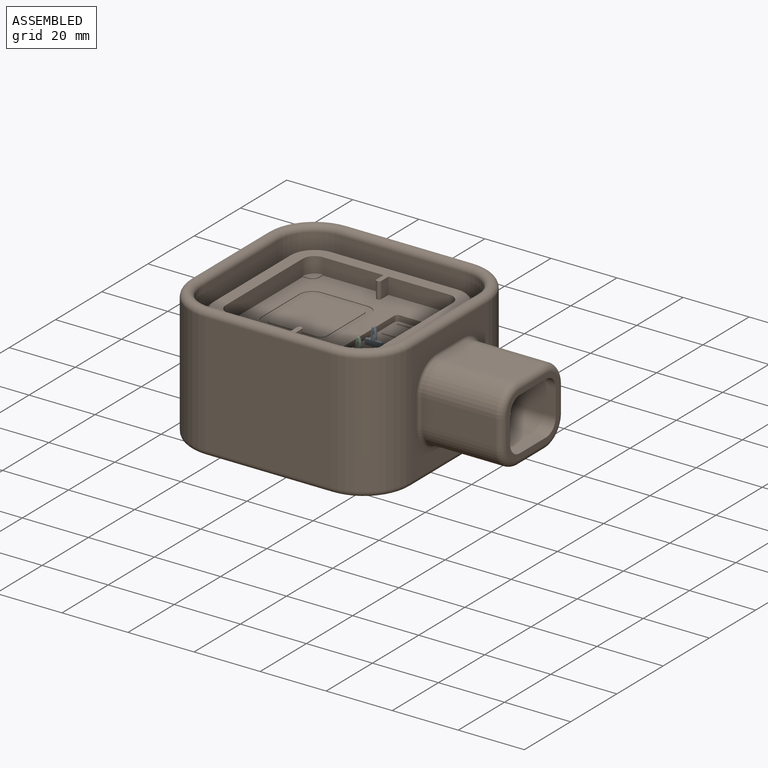
[diagram: assembled view]
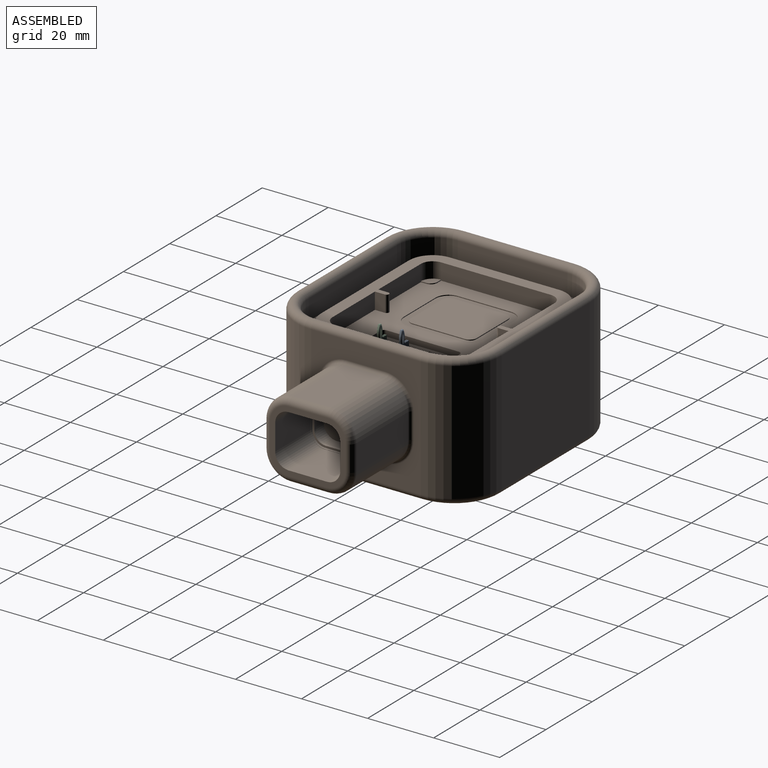
[diagram: assembled view, second angle]
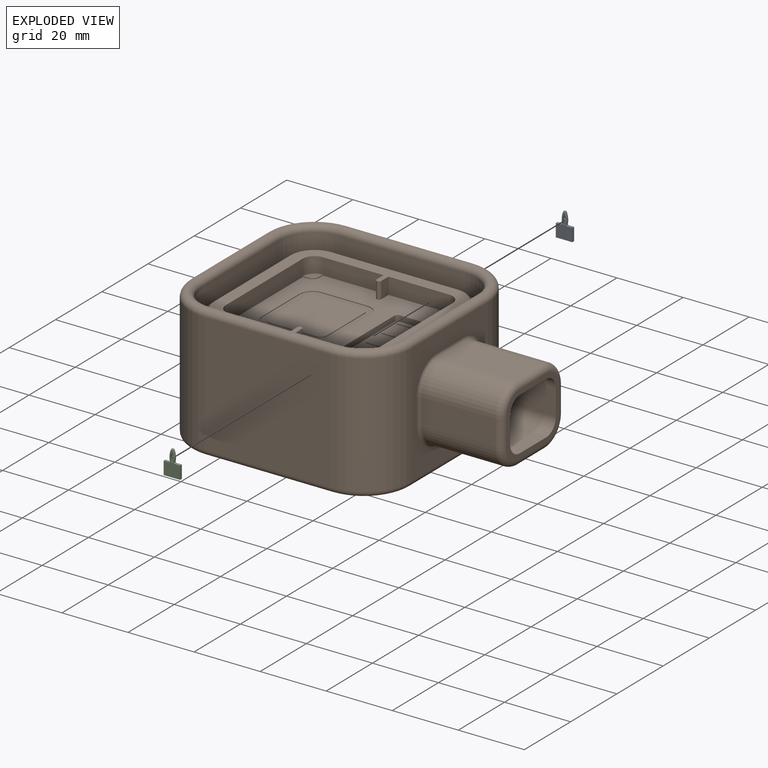
[diagram: exploded view]
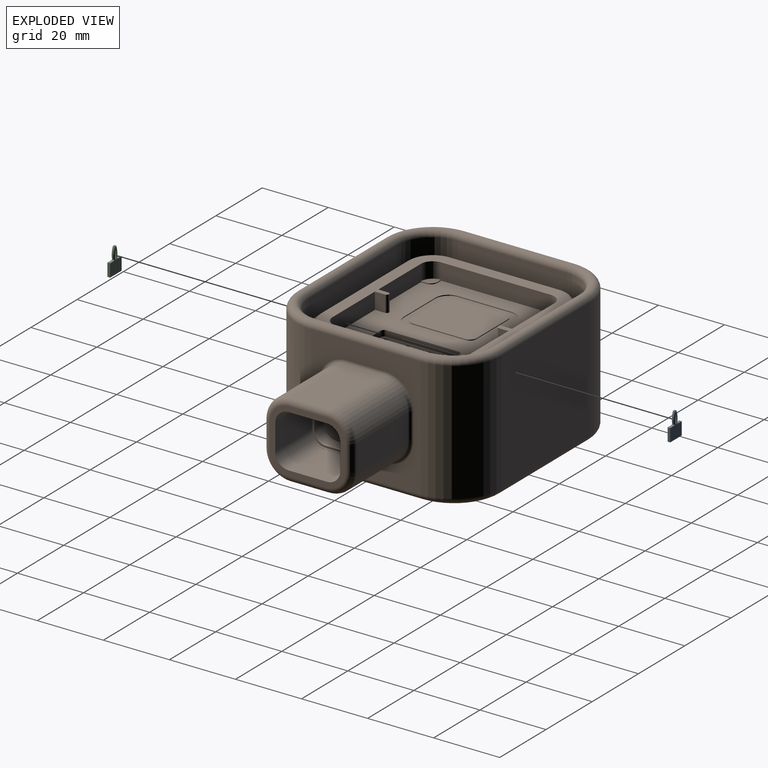
[diagram: exploded view, second angle]
ASSEMBLY  parts=3 mates=4
PART A: 50 faces, bbox 5x7.9x1.8 mm
  f0: plane 3.92x0.8mm, normal (-1,0,0), area 3.1mm2, adj f1,f2,f11,f48
  f1: plane 7.44x5mm, normal (0,0,1), area 21.6mm2, adj f0,f5,f11,f16,f17,f18,f19,f20
  f2: plane 7.44x5mm, normal (0,0,-1), area 21.6mm2, adj f0,f5,f11,f16,f17,f18,f19,f30
  f3: plane 0.64x0.51mm, normal (0,-1,0), area 0.3mm2, adj f4,f12,f20,f25,f30,f35,f40,f41
  f4: cylinder r=5.53mm len=2.32mm, axis (0,0,-1), area 0.7mm2, adj f3,f9,f25,f30
  f5: plane 1.61x0.8mm, normal (0,-1,0), area 1.2mm2, adj f1,f2,f42,f43,f44,f49
  f6: plane 0.3x0.11mm, normal (1,0,0), area 0mm2, adj f7,f29,f34,f43
  f7: cylinder r=1mm len=0.3mm, axis (0,0,-1), area 0.1mm2, adj f6,f8,f28,f33
  f8: cylinder r=2mm len=0.56mm, axis (0,0,-1), area 0.2mm2, adj f7,f9,f27,f32
  f9: plane 0.3x0.26mm, normal (1,0,0), area 0.1mm2, adj f4,f8,f26,f31
  f10: plane 0.3x0.11mm, normal (-1,0,0), area 0mm2, adj f15,f24,f39,f46
  f11: plane 1.61x0.8mm, normal (0,-1,0), area 1.2mm2, adj f0,f1,f2,f45,f46,f47
  f12: cylinder r=5.53mm len=2.32mm, axis (0,0,-1), area 0.7mm2, adj f3,f13,f20,f35
  f13: plane 0.3x0.26mm, normal (-1,0,0), area 0.1mm2, adj f12,f14,f21,f36
  f14: cylinder r=2mm len=0.56mm, axis (0,0,-1), area 0.2mm2, adj f13,f15,f22,f37
  f15: cylinder r=1mm len=0.3mm, axis (0,0,-1), area 0.1mm2, adj f10,f14,f23,f38
  f16: cylinder r=0.2mm len=0.8mm, axis (0,0,-1), area 0.4mm2, adj f1,f2,f17,f19
  f17: cylinder r=4.67mm len=2.32mm, axis (0,0,-1), area 1.9mm2, adj f1,f2,f16,f18
  f18: cylinder r=0.2mm len=0.8mm, axis (0,0,-1), area 0.4mm2, adj f1,f2,f17,f19
  f19: cylinder r=4.67mm len=2.32mm, axis (0,0,-1), area 1.9mm2, adj f1,f2,f16,f18
  f20: torus R=5.28mm, axis (0,0,1), area 0.9mm2, adj f1,f3,f12,f21,f40
  f21: cylinder r=0.25mm len=0.26mm, axis (0,1,0), area 0.1mm2, adj f1,f13,f20,f22
  f22: torus R=1.75mm, axis (0,0,1), area 0.2mm2, adj f1,f14,f21,f23
  f23: torus R=1.25mm, axis (0,0,1), area 0.1mm2, adj f1,f15,f22,f24
  f24: cylinder r=0.25mm len=0.25mm, axis (0,1,0), area 0mm2, adj f1,f10,f23,f47
  f25: torus R=5.28mm, axis (0,0,1), area 0.9mm2, adj f1,f3,f4,f26,f40
  f26: cylinder r=0.25mm len=0.26mm, axis (0,-1,0), area 0.1mm2, adj f1,f9,f25,f27
  f27: torus R=1.75mm, axis (0,0,1), area 0.2mm2, adj f1,f8,f26,f28
  f28: torus R=1.25mm, axis (0,0,1), area 0.1mm2, adj f1,f7,f27,f29
  f29: cylinder r=0.25mm len=0.25mm, axis (0,-1,0), area 0mm2, adj f1,f6,f28,f44
  f30: torus R=5.28mm, axis (0,0,1), area 0.9mm2, adj f2,f3,f4,f31,f41
  f31: cylinder r=0.25mm len=0.26mm, axis (0,1,0), area 0.1mm2, adj f2,f9,f30,f32
  f32: torus R=1.75mm, axis (0,0,1), area 0.2mm2, adj f2,f8,f31,f33
  f33: torus R=1.25mm, axis (0,0,1), area 0.1mm2, adj f2,f7,f32,f34
  f34: cylinder r=0.25mm len=0.25mm, axis (0,1,0), area 0mm2, adj f2,f6,f33,f42
  f35: torus R=5.28mm, axis (0,0,1), area 0.9mm2, adj f2,f3,f12,f36,f41
  f36: cylinder r=0.25mm len=0.26mm, axis (0,-1,0), area 0.1mm2, adj f2,f13,f35,f37
  f37: torus R=1.75mm, axis (0,0,1), area 0.2mm2, adj f2,f14,f36,f38
  f38: torus R=1.25mm, axis (0,0,1), area 0.1mm2, adj f2,f15,f37,f39
  f39: cylinder r=0.25mm len=0.25mm, axis (0,-1,0), area 0mm2, adj f2,f10,f38,f45
  f40: plane 0.61x0.26mm, normal (0,-0.5,0.87), area 0.2mm2, adj f1,f3,f20,f25
  f41: plane 0.61x0.26mm, normal (0,-0.5,-0.87), area 0.2mm2, adj f2,f3,f30,f35
  f42: torus R=0.5mm, axis (0,1,0), area 0.1mm2, adj f2,f5,f34,f43
  f43: cylinder r=0.25mm len=0.3mm, axis (0,0,1), area 0.1mm2, adj f5,f6,f42,f44
  f44: torus R=0.5mm, axis (0,1,0), area 0.1mm2, adj f1,f5,f29,f43
  f45: torus R=0.5mm, axis (0,1,0), area 0.1mm2, adj f2,f11,f39,f46
  f46: cylinder r=0.25mm len=0.3mm, axis (0,0,1), area 0.1mm2, adj f10,f11,f45,f47
  f47: torus R=0.5mm, axis (0,1,0), area 0.1mm2, adj f1,f11,f24,f46
  f48: plane 5x0.8mm, normal (0,1,0), area 4mm2, adj f0,f1,f2,f49
  f49: plane 3.92x0.8mm, normal (1,0,0), area 3.1mm2, adj f1,f2,f5,f48
PART B: 317 faces, bbox 93.3x64.4x40 mm
  f0: plane 19.58x15.82mm, normal (1,0,0), area 276.3mm2, adj f4,f5,f6,f7,f8,f9,f10,f11
  f1: plane 19.58x15.82mm, normal (1,0,0), area 36.3mm2, adj f21,f22,f23,f24,f25,f26,f27,f28
  f2: plane 63.4x58.4mm, normal (0,0,-1), area 741.9mm2, adj f198,f199,f200,f201,f202,f203,f204,f205
  f3: plane 19.58x15.82mm, normal (-1,0,0), area 17.1mm2, adj f4,f5,f6,f7,f8,f9,f10,f11
  f4: cylinder r=4mm len=4mm, axis (-1,0,0), area 22.3mm2, adj f0,f3,f5,f11
  f5: plane 7.82x3.56mm, normal (0,1,0), area 27.8mm2, adj f0,f3,f4,f6
  f6: cylinder r=4mm len=4mm, axis (-1,0,0), area 22.3mm2, adj f0,f3,f5,f7
  f7: plane 11.58x3.56mm, normal (0,0,-1), area 41.2mm2, adj f0,f3,f6,f8
  f8: cylinder r=4mm len=4mm, axis (-1,0,0), area 22.3mm2, adj f0,f3,f7,f9
  f9: plane 7.82x3.56mm, normal (0,-1,0), area 27.8mm2, adj f0,f3,f8,f10
  f10: cylinder r=4mm len=4mm, axis (-1,0,0), area 22.3mm2, adj f0,f3,f9,f11
  f11: plane 11.58x3.56mm, normal (0,0,1), area 41.2mm2, adj f0,f3,f4,f10
  f12: plane 19.04x15.28mm, normal (-1,0,0), area 19.2mm2, adj f13,f14,f15,f16,f17,f18,f19,f20
  f13: cylinder r=3.73mm len=3.73mm, axis (-1,0,0), area 3.6mm2, adj f3,f12,f14,f20
  f14: plane 7.82x0.61mm, normal (0,1,0), area 4.8mm2, adj f3,f12,f13,f15
  f15: cylinder r=3.73mm len=3.73mm, axis (-1,0,0), area 3.6mm2, adj f3,f12,f14,f16
  f16: plane 11.58x0.61mm, normal (0,0,-1), area 7.1mm2, adj f3,f12,f15,f17
  f17: cylinder r=3.73mm len=3.73mm, axis (-1,0,0), area 3.6mm2, adj f3,f12,f16,f18
  f18: plane 7.82x0.61mm, normal (0,-1,0), area 4.8mm2, adj f3,f12,f17,f19
  f19: cylinder r=3.73mm len=3.73mm, axis (-1,0,0), area 3.6mm2, adj f3,f12,f18,f20
  f20: plane 11.58x0.61mm, normal (0,0,1), area 7.1mm2, adj f3,f12,f13,f19
  f21: plane 7.82x0.72mm, normal (0,1,0), area 5.7mm2, adj f1,f12,f22,f28
  f22: cylinder r=3.42mm len=3.42mm, axis (-1,0,0), area 3.9mm2, adj f1,f12,f21,f23
  f23: plane 11.58x0.72mm, normal (0,0,-1), area 8.4mm2, adj f1,f12,f22,f24
  f24: cylinder r=3.42mm len=3.42mm, axis (-1,0,0), area 3.9mm2, adj f1,f12,f23,f25
  f25: plane 7.82x0.72mm, normal (0,-1,0), area 5.7mm2, adj f1,f12,f24,f26
  f26: cylinder r=3.42mm len=3.42mm, axis (-1,0,0), area 3.9mm2, adj f1,f12,f25,f27
  f27: plane 11.58x0.72mm, normal (0,0,1), area 8.4mm2, adj f1,f12,f26,f28
  f28: cylinder r=3.42mm len=3.42mm, axis (-1,0,0), area 3.9mm2, adj f1,f12,f21,f27
  f29: cylinder r=0.75mm len=5mm, axis (0,0,1), area 11.8mm2, adj f30,f31,f81,f82
  f30: plane 5x3mm, normal (1,0,0), area 15mm2, adj f29,f81,f82,f90
  f31: plane 5x3mm, normal (-1,0,0), area 15mm2, adj f29,f81,f82,f295
  f32: plane 5x3mm, normal (-1,0,0), area 15mm2, adj f33,f81,f82,f86
  f33: cylinder r=0.75mm len=5mm, axis (0,0,1), area 11.8mm2, adj f32,f34,f81,f82
  f34: plane 5x3mm, normal (1,0,0), area 15mm2, adj f33,f81,f82,f294
  f35: plane 3.6x3.6mm, normal (0,0,1), area 9.3mm2, adj f36,f37,f89,f182
  f36: plane 1.6x0.25mm, normal (-1,0,0), area 0.4mm2, adj f35,f82,f90,f182
  f37: plane 1.6x0.25mm, normal (0,1,0), area 0.4mm2, adj f35,f82,f88,f182
  f38: plane 3.6x3.6mm, normal (0,0,1), area 9.3mm2, adj f39,f40,f87,f183
  f39: plane 1.6x0.25mm, normal (-1,0,0), area 0.4mm2, adj f38,f82,f183,f294
  f40: plane 1.6x0.25mm, normal (0,-1,0), area 0.4mm2, adj f38,f82,f88,f183
  f41: plane 3.6x3.6mm, normal (0,0,1), area 9.3mm2, adj f42,f43,f83,f184
  f42: plane 1.6x0.25mm, normal (0,1,0), area 0.4mm2, adj f41,f82,f84,f184
  f43: plane 1.6x0.25mm, normal (1,0,0), area 0.4mm2, adj f41,f82,f184,f295
  f44: plane 3.6x3.6mm, normal (0,0,1), area 9.3mm2, adj f45,f46,f85,f185
  f45: plane 1.6x0.25mm, normal (1,0,0), area 0.4mm2, adj f44,f82,f86,f185
  f46: plane 1.6x0.25mm, normal (0,-1,0), area 0.4mm2, adj f44,f82,f84,f185
  f47: plane 24x21.65mm, normal (0,0,1), area 156.3mm2, adj f48,f49,f50,f51,f52,f53,f54,f55
  f48: plane 13.65x0.25mm, normal (0,-1,0), area 3.4mm2, adj f47,f82,f176,f177
  f49: plane 16x0.25mm, normal (-1,0,0), area 4mm2, adj f47,f82,f175,f176
  f50: plane 13.65x0.25mm, normal (0,1,0), area 3.4mm2, adj f47,f82,f174,f175
  f51: plane 16x0.25mm, normal (1,0,0), area 4mm2, adj f47,f82,f174,f177
  f52: plane 16x0.25mm, normal (1,0,0), area 4mm2, adj f47,f180,f181,f293
  f53: plane 13.65x0.25mm, normal (0,1,0), area 3.4mm2, adj f47,f179,f180,f293
  f54: plane 16x0.25mm, normal (-1,0,0), area 4mm2, adj f47,f178,f179,f293
  f55: plane 13.65x0.25mm, normal (0,-1,0), area 3.4mm2, adj f47,f178,f181,f293
  f56: plane 5x0.5mm, normal (0,0,1), area 2.5mm2, adj f57,f58,f59,f60
  f57: plane 5x0.5mm, normal (1,0,0), area 2.5mm2, adj f56,f58,f60,f158
  f58: plane 5x5mm, normal (0,-1,0), area 25mm2, adj f56,f57,f59,f159
  f59: plane 5x0.5mm, normal (-1,0,0), area 2.5mm2, adj f56,f58,f60,f161
  f60: plane 5x5mm, normal (0,1,0), area 25mm2, adj f56,f57,f59,f160
  f61: plane 5x0.5mm, normal (0,0,1), area 2.5mm2, adj f62,f63,f64,f65
  f62: plane 5x0.5mm, normal (1,0,0), area 2.5mm2, adj f61,f63,f65,f162
  f63: plane 5x5mm, normal (0,-1,0), area 25mm2, adj f61,f62,f64,f163
  f64: plane 5x0.5mm, normal (-1,0,0), area 2.5mm2, adj f61,f63,f65,f165
  f65: plane 5x5mm, normal (0,1,0), area 25mm2, adj f61,f62,f64,f164
  f66: plane 5x0.5mm, normal (0,0,1), area 2.5mm2, adj f67,f68,f69,f70
  f67: plane 5x0.5mm, normal (1,0,0), area 2.5mm2, adj f66,f68,f70,f170
  f68: plane 5x5mm, normal (0,-1,0), area 25mm2, adj f66,f67,f69,f171
  f69: plane 5x0.5mm, normal (-1,0,0), area 2.5mm2, adj f66,f68,f70,f173
  f70: plane 5x5mm, normal (0,1,0), area 25mm2, adj f66,f67,f69,f172
  f71: plane 5x0.5mm, normal (0,0,1), area 2.5mm2, adj f72,f73,f74,f75
  f72: plane 5x0.5mm, normal (1,0,0), area 2.5mm2, adj f71,f73,f75,f166
  f73: plane 5x5mm, normal (0,-1,0), area 25mm2, adj f71,f72,f74,f167
  f74: plane 5x0.5mm, normal (-1,0,0), area 2.5mm2, adj f71,f73,f75,f169
  f75: plane 5x5mm, normal (0,1,0), area 25mm2, adj f71,f72,f74,f168
  f76: plane 24x8mm, normal (0,0,1), area 169.1mm2, adj f77,f78,f79,f80,f158,f159,f160,f161
  f77: plane 6x1.75mm, normal (0,-1,0), area 10.5mm2, adj f76,f82,f188,f189
  f78: plane 22x1.75mm, normal (-1,0,0), area 38.5mm2, adj f76,f82,f187,f188
  f79: plane 6x1.75mm, normal (0,1,0), area 10.5mm2, adj f76,f82,f186,f187
  f80: plane 22x1.75mm, normal (1,0,0), area 38.5mm2, adj f76,f82,f186,f189
  f81: plane 52.6x47.6mm, normal (0,0,1), area 647mm2, adj f29,f30,f31,f32,f33,f34,f83,f84
  f82: plane 45.4x40.4mm, normal (0,0,1), area 1078mm2, adj f29,f30,f31,f32,f33,f34,f36,f37
  f83: cylinder r=3.6mm len=4.75mm, axis (0,0,-1), area 26.9mm2, adj f41,f81,f84,f295
  f84: plane 33.2x5mm, normal (1,0,0), area 166mm2, adj f42,f46,f81,f82,f83,f85
  f85: cylinder r=3.6mm len=4.75mm, axis (0,0,-1), area 26.9mm2, adj f44,f81,f84,f86
  f86: plane 18.35x5mm, normal (0,-1,0), area 91.8mm2, adj f32,f45,f81,f82,f85
  f87: cylinder r=3.6mm len=4.75mm, axis (0,0,-1), area 26.9mm2, adj f38,f81,f88,f294
  f88: plane 33.2x5mm, normal (-1,0,0), area 166mm2, adj f37,f40,f81,f82,f87,f89
  f89: cylinder r=3.6mm len=4.75mm, axis (0,0,-1), area 26.9mm2, adj f35,f81,f88,f90
  f90: plane 18.35x5mm, normal (0,1,0), area 91.8mm2, adj f30,f36,f81,f82,f89
  f91: plane 59.8x54.8mm, normal (0,0,1), area 717.7mm2, adj f92,f93,f94,f95,f96,f97,f98,f99
  f92: cylinder r=7.2mm len=7.2mm, axis (0,0,-1), area 33.9mm2, adj f81,f91,f93,f99
  f93: plane 33.2x3mm, normal (1,0,0), area 99.6mm2, adj f81,f91,f92,f94
  f94: cylinder r=7.2mm len=7.2mm, axis (0,0,-1), area 33.9mm2, adj f81,f91,f93,f95
  f95: plane 38.2x3mm, normal (0,1,0), area 114.6mm2, adj f81,f91,f94,f96
  f96: cylinder r=7.2mm len=7.2mm, axis (0,0,-1), area 33.9mm2, adj f81,f91,f95,f97
  f97: plane 33.2x3mm, normal (-1,0,0), area 99.6mm2, adj f81,f91,f96,f98
  f98: cylinder r=7.2mm len=7.2mm, axis (0,0,-1), area 33.9mm2, adj f81,f91,f97,f99
  f99: plane 38.2x3mm, normal (0,-1,0), area 114.6mm2, adj f81,f91,f92,f98
  f100: cylinder r=10.8mm len=10.8mm, axis (0,0,-1), area 105.2mm2, adj f91,f101,f107,f190
  f101: plane 33.2x6.2mm, normal (1,0,0), area 205.8mm2, adj f91,f100,f102,f192
  f102: cylinder r=10.8mm len=10.8mm, axis (0,0,-1), area 105.2mm2, adj f91,f101,f103,f194
  f103: plane 38.2x6.2mm, normal (0,-1,0), area 236.8mm2, adj f91,f102,f104,f196
  f104: cylinder r=10.8mm len=10.8mm, axis (0,0,-1), area 105.2mm2, adj f91,f103,f105,f197
  f105: plane 33.2x6.2mm, normal (-1,0,0), area 205.8mm2, adj f91,f104,f106,f195
  f106: cylinder r=10.8mm len=10.8mm, axis (0,0,-1), area 105.2mm2, adj f91,f105,f107,f193
  f107: plane 38.2x6.2mm, normal (0,1,0), area 236.8mm2, adj f91,f100,f106,f191
  f108: plane 7.82x0.69mm, normal (0,-1,0), area 5.4mm2, adj f1,f109,f115,f116
  f109: cylinder r=4mm len=4mm, axis (-1,0,0), area 4.3mm2, adj f1,f108,f110,f116
  f110: plane 11.58x0.69mm, normal (0,0,1), area 7.9mm2, adj f1,f109,f111,f116
  f111: cylinder r=4mm len=4mm, axis (-1,0,0), area 4.3mm2, adj f1,f110,f112,f116
  f112: plane 7.82x0.69mm, normal (0,1,0), area 5.4mm2, adj f1,f111,f113,f116
  f113: cylinder r=4mm len=4mm, axis (-1,0,0), area 4.3mm2, adj f1,f112,f114,f116
  f114: plane 11.58x0.69mm, normal (0,0,-1), area 7.9mm2, adj f1,f113,f115,f116
  f115: cylinder r=4mm len=4mm, axis (-1,0,0), area 4.3mm2, adj f1,f108,f114,f116
  f116: plane 19.71x15.95mm, normal (1,0,0), area 4.1mm2, adj f108,f109,f110,f111,f112,f113,f114,f115
  f117: plane 15.3x7.82mm, normal (0,-1,0), area 119.6mm2, adj f116,f118,f124,f125
  f118: cylinder r=4.06mm len=15.3mm, axis (-1,0,0), area 97.7mm2, adj f116,f117,f119,f125
  f119: plane 15.3x11.58mm, normal (0,0,1), area 177.2mm2, adj f116,f118,f120,f125
  f120: cylinder r=4.06mm len=15.3mm, axis (-1,0,0), area 97.7mm2, adj f116,f119,f121,f125
  f121: plane 15.3x7.82mm, normal (0,1,0), area 119.6mm2, adj f116,f120,f122,f125
  f122: cylinder r=4.06mm len=15.3mm, axis (-1,0,0), area 97.7mm2, adj f116,f121,f123,f125
  f123: plane 15.3x11.58mm, normal (0,0,-1), area 177.2mm2, adj f116,f122,f124,f125
  f124: cylinder r=4.06mm len=15.3mm, axis (-1,0,0), area 97.7mm2, adj f116,f117,f123,f125
  f125: plane 22.92x19.16mm, normal (1,0,0), area 111.5mm2, adj f117,f118,f119,f120,f121,f122,f123,f124
  f126: plane 22.15x11.58mm, normal (0,0,-1), area 256.4mm2, adj f136,f137,f145,f148
  f127: plane 22.15x7.82mm, normal (0,-1,0), area 173.1mm2, adj f135,f136,f141,f152
  f128: plane 22.15x11.58mm, normal (0,0,1), area 256.4mm2, adj f134,f135,f138,f151
  f129: plane 22.15x7.82mm, normal (0,1,0), area 173.1mm2, adj f134,f137,f142,f147
  f130: plane 38.2x36.4mm, normal (0,-1,0), area 1390.5mm2, adj f156,f157,f191,f202
  f131: plane 36.4x33.2mm, normal (-1,0,0), area 1208.5mm2, adj f155,f156,f192,f198
  f132: plane 38.2x36.4mm, normal (0,1,0), area 1390.5mm2, adj f154,f155,f196,f201
  f133: plane 36.4x33.2mm, normal (1,0,0), area 545.4mm2, adj f138,f139,f140,f141,f142,f143,f144,f145
  f134: cylinder r=7.67mm len=22.15mm, axis (1,0,0), area 266.8mm2, adj f128,f129,f140,f149
  f135: cylinder r=7.67mm len=22.15mm, axis (-1,0,0), area 266.8mm2, adj f127,f128,f139,f153
  f136: cylinder r=7.67mm len=22.15mm, axis (1,0,0), area 266.8mm2, adj f126,f127,f143,f150
  f137: cylinder r=7.67mm len=22.15mm, axis (-1,0,0), area 266.8mm2, adj f126,f129,f144,f146
  f138: cylinder r=1mm len=11.58mm, axis (0,-1,0), area 18.2mm2, adj f128,f133,f139,f140
  f139: torus R=8.67mm, axis (-1,0,0), area 19.8mm2, adj f133,f135,f138,f141
  f140: torus R=8.67mm, axis (-1,0,0), area 19.8mm2, adj f133,f134,f138,f142
  f141: cylinder r=1mm len=7.82mm, axis (0,0,-1), area 12.3mm2, adj f127,f133,f139,f143
  f142: cylinder r=1mm len=7.82mm, axis (0,0,1), area 12.3mm2, adj f129,f133,f140,f144
  f143: torus R=8.67mm, axis (-1,0,0), area 19.8mm2, adj f133,f136,f141,f145
  f144: torus R=8.67mm, axis (-1,0,0), area 19.8mm2, adj f133,f137,f142,f145
  f145: cylinder r=1mm len=11.58mm, axis (0,1,0), area 18.2mm2, adj f126,f133,f143,f144
  f146: torus R=5.67mm, axis (1,0,0), area 34.3mm2, adj f125,f137,f147,f148
  f147: cylinder r=2mm len=7.82mm, axis (0,0,1), area 24.6mm2, adj f125,f129,f146,f149
  f148: cylinder r=2mm len=11.58mm, axis (0,1,0), area 36.4mm2, adj f125,f126,f146,f150
  f149: torus R=5.67mm, axis (1,0,0), area 34.3mm2, adj f125,f134,f147,f151
  f150: torus R=5.67mm, axis (1,0,0), area 34.3mm2, adj f125,f136,f148,f152
  f151: cylinder r=2mm len=11.58mm, axis (0,-1,0), area 36.4mm2, adj f125,f128,f149,f153
  f152: cylinder r=2mm len=7.82mm, axis (0,0,-1), area 24.6mm2, adj f125,f127,f150,f153
  f153: torus R=5.67mm, axis (1,0,0), area 34.3mm2, adj f125,f135,f151,f152
  f154: cylinder r=14.4mm len=36.4mm, axis (0,0,1), area 823.3mm2, adj f132,f133,f197,f203
  f155: cylinder r=14.4mm len=36.4mm, axis (0,0,-1), area 823.3mm2, adj f131,f132,f194,f199
  f156: cylinder r=14.4mm len=36.4mm, axis (0,0,1), area 823.3mm2, adj f130,f131,f190,f200
  f157: cylinder r=14.4mm len=36.4mm, axis (0,0,-1), area 823.3mm2, adj f130,f133,f193,f204
  f158: plane 1x0.25mm, normal (-0.71,0,0.71), area 0.3mm2, adj f57,f76,f159,f160
  f159: plane 5.5x0.25mm, normal (0,0.71,0.71), area 1.9mm2, adj f58,f76,f158,f161
  f160: plane 5.5x0.25mm, normal (0,-0.71,0.71), area 1.9mm2, adj f60,f76,f158,f161
  f161: plane 1x0.25mm, normal (0.71,0,0.71), area 0.3mm2, adj f59,f76,f159,f160
  f162: plane 1x0.25mm, normal (-0.71,0,0.71), area 0.3mm2, adj f62,f76,f163,f164
  f163: plane 5.5x0.25mm, normal (0,0.71,0.71), area 1.9mm2, adj f63,f76,f162,f165
  f164: plane 5.5x0.25mm, normal (0,-0.71,0.71), area 1.9mm2, adj f65,f76,f162,f165
  f165: plane 1x0.25mm, normal (0.71,0,0.71), area 0.3mm2, adj f64,f76,f163,f164
  f166: plane 1x0.25mm, normal (-0.71,0,0.71), area 0.3mm2, adj f72,f76,f167,f168
  f167: plane 5.5x0.25mm, normal (0,0.71,0.71), area 1.9mm2, adj f73,f76,f166,f169
  f168: plane 5.5x0.25mm, normal (0,-0.71,0.71), area 1.9mm2, adj f75,f76,f166,f169
  f169: plane 1x0.25mm, normal (0.71,0,0.71), area 0.3mm2, adj f74,f76,f167,f168
  f170: plane 1x0.25mm, normal (-0.71,0,0.71), area 0.3mm2, adj f67,f76,f171,f172
  f171: plane 5.5x0.25mm, normal (0,0.71,0.71), area 1.9mm2, adj f68,f76,f170,f173
  f172: plane 5.5x0.25mm, normal (0,-0.71,0.71), area 1.9mm2, adj f70,f76,f170,f173
  f173: plane 1x0.25mm, normal (0.71,0,0.71), area 0.3mm2, adj f69,f76,f171,f172
  f174: cylinder r=4mm len=4mm, axis (0,0,1), area 1.6mm2, adj f47,f50,f51,f82
  f175: cylinder r=4mm len=4mm, axis (0,0,-1), area 1.6mm2, adj f47,f49,f50,f82
  f176: cylinder r=4mm len=4mm, axis (0,0,1), area 1.6mm2, adj f47,f48,f49,f82
  f177: cylinder r=4mm len=4mm, axis (0,0,-1), area 1.6mm2, adj f47,f48,f51,f82
  f178: cylinder r=2mm len=2mm, axis (0,0,-1), area 0.8mm2, adj f47,f54,f55,f293
  f179: cylinder r=2mm len=2mm, axis (0,0,1), area 0.8mm2, adj f47,f53,f54,f293
  f180: cylinder r=2mm len=2mm, axis (0,0,-1), area 0.8mm2, adj f47,f52,f53,f293
  f181: cylinder r=2mm len=2mm, axis (0,0,1), area 0.8mm2, adj f47,f52,f55,f293
  f182: cylinder r=2mm len=2mm, axis (0,0,-1), area 0.8mm2, adj f35,f36,f37,f82
  f183: cylinder r=2mm len=2mm, axis (0,0,-1), area 0.8mm2, adj f38,f39,f40,f82
  f184: cylinder r=2mm len=2mm, axis (0,0,-1), area 0.8mm2, adj f41,f42,f43,f82
  f185: cylinder r=2mm len=2mm, axis (0,0,-1), area 0.8mm2, adj f44,f45,f46,f82
  f186: cylinder r=1mm len=1.75mm, axis (0,0,1), area 2.7mm2, adj f76,f79,f80,f82
  f187: cylinder r=1mm len=1.75mm, axis (0,0,-1), area 2.7mm2, adj f76,f78,f79,f82
  f188: cylinder r=1mm len=1.75mm, axis (0,0,1), area 2.7mm2, adj f76,f77,f78,f82
  f189: cylinder r=1mm len=1.75mm, axis (0,0,-1), area 2.7mm2, adj f76,f77,f80,f82
  f190: torus R=12.6mm, axis (0,0,1), area 111.9mm2, adj f100,f156,f191,f192
  f191: cylinder r=1.8mm len=38.2mm, axis (1,0,0), area 216mm2, adj f107,f130,f190,f193
  f192: cylinder r=1.8mm len=33.2mm, axis (0,-1,0), area 187.7mm2, adj f101,f131,f190,f194
  f193: torus R=12.6mm, axis (0,0,1), area 111.9mm2, adj f106,f157,f191,f195
  f194: torus R=12.6mm, axis (0,0,1), area 111.9mm2, adj f102,f155,f192,f196
  f195: cylinder r=1.8mm len=33.2mm, axis (0,1,0), area 187.7mm2, adj f105,f133,f193,f197
  f196: cylinder r=1.8mm len=38.2mm, axis (-1,0,0), area 216mm2, adj f103,f132,f194,f197
  f197: torus R=12.6mm, axis (0,0,1), area 111.9mm2, adj f104,f154,f195,f196
  f198: cylinder r=1.8mm len=33.2mm, axis (0,1,0), area 93.9mm2, adj f2,f131,f199,f200
  f199: torus R=12.6mm, axis (0,0,1), area 61.1mm2, adj f2,f155,f198,f201
  f200: torus R=12.6mm, axis (0,0,1), area 61.1mm2, adj f2,f156,f198,f202
  f201: cylinder r=1.8mm len=38.2mm, axis (1,0,0), area 108mm2, adj f2,f132,f199,f203
  f202: cylinder r=1.8mm len=38.2mm, axis (-1,0,0), area 108mm2, adj f2,f130,f200,f204
  f203: torus R=12.6mm, axis (0,0,1), area 61.1mm2, adj f2,f154,f201,f205
  f204: torus R=12.6mm, axis (0,0,1), area 61.1mm2, adj f2,f157,f202,f205
  f205: cylinder r=1.8mm len=33.2mm, axis (0,-1,0), area 93.9mm2, adj f2,f133,f203,f204
  f206: torus R=10mm, axis (0,0,1), area 23.1mm2, adj f2,f207,f208,f312
  f207: cylinder r=1mm len=13.8mm, axis (0,1,0), area 21.7mm2, adj f2,f206,f209,f316
  f208: cylinder r=1mm len=16.3mm, axis (-1,0,0), area 25.6mm2, adj f2,f206,f210,f313
  f209: torus R=2mm, axis (0,0,1), area 3.4mm2, adj f2,f207,f211,f212
  f210: torus R=2mm, axis (0,0,1), area 3.4mm2, adj f2,f208,f213,f214
  f211: cylinder r=1mm len=24.3mm, axis (1,0,0), area 38.2mm2, adj f2,f209,f215,f315
  f212: cylinder r=1mm len=8mm, axis (0,0,-1), area 12.6mm2, adj f209,f216,f315,f316
  f213: cylinder r=1mm len=8mm, axis (0,0,-1), area 12.6mm2, adj f210,f217,f313,f314
  f214: cylinder r=1mm len=21.8mm, axis (0,-1,0), area 34.2mm2, adj f2,f210,f215,f314
  f215: torus R=2mm, axis (0,0,1), area 3.4mm2, adj f2,f211,f214,f218
  f216: sphere r=1mm, area 1.6mm2, adj f212,f219,f220
  f217: sphere r=1mm, area 1.6mm2, adj f213,f221,f222
  f218: cylinder r=1mm len=8mm, axis (0,0,-1), area 12.6mm2, adj f215,f223,f314,f315
  f219: cylinder r=1mm len=24.3mm, axis (1,0,0), area 38.2mm2, adj f216,f223,f311,f315
  f220: cylinder r=1mm len=13.8mm, axis (0,1,0), area 21.7mm2, adj f216,f224,f311,f316
  f221: cylinder r=1mm len=16.3mm, axis (-1,0,0), area 25.6mm2, adj f217,f224,f311,f313
  f222: cylinder r=1mm len=21.8mm, axis (0,-1,0), area 34.2mm2, adj f217,f223,f311,f314
  f223: sphere r=1mm, area 1.6mm2, adj f218,f219,f222
  f224: torus R=8mm, axis (0,0,-1), area 21.3mm2, adj f220,f221,f311,f312
  f225: torus R=10mm, axis (0,0,1), area 23.1mm2, adj f2,f226,f227,f306
  f226: cylinder r=1mm len=13.8mm, axis (0,-1,0), area 21.7mm2, adj f2,f225,f228,f307
  f227: cylinder r=1mm len=16.3mm, axis (-1,0,0), area 25.6mm2, adj f2,f225,f229,f310
  f228: torus R=2mm, axis (0,0,1), area 3.4mm2, adj f2,f226,f230,f231
  f229: torus R=2mm, axis (0,0,1), area 3.4mm2, adj f2,f227,f232,f233
  f230: cylinder r=1mm len=8mm, axis (0,0,-1), area 12.6mm2, adj f228,f234,f307,f308
  f231: cylinder r=1mm len=24.3mm, axis (1,0,0), area 38.2mm2, adj f2,f228,f235,f308
  f232: cylinder r=1mm len=21.8mm, axis (0,1,0), area 34.2mm2, adj f2,f229,f235,f309
  f233: cylinder r=1mm len=8mm, axis (0,0,-1), area 12.6mm2, adj f229,f236,f309,f310
  f234: sphere r=1mm, area 1.6mm2, adj f230,f237,f238
  f235: torus R=2mm, axis (0,0,1), area 3.4mm2, adj f2,f231,f232,f239
  f236: sphere r=1mm, area 1.6mm2, adj f233,f240,f241
  f237: cylinder r=1mm len=13.8mm, axis (0,-1,0), area 21.7mm2, adj f234,f242,f305,f307
  f238: cylinder r=1mm len=24.3mm, axis (1,0,0), area 38.2mm2, adj f234,f243,f305,f308
  f239: cylinder r=1mm len=8mm, axis (0,0,-1), area 12.6mm2, adj f235,f243,f308,f309
  f240: cylinder r=1mm len=21.8mm, axis (0,1,0), area 34.2mm2, adj f236,f243,f305,f309
  f241: cylinder r=1mm len=16.3mm, axis (-1,0,0), area 25.6mm2, adj f236,f242,f305,f310
  f242: torus R=8mm, axis (0,0,-1), area 21.3mm2, adj f237,f241,f305,f306
  f243: sphere r=1mm, area 1.6mm2, adj f238,f239,f240
  f244: torus R=10mm, axis (0,0,1), area 23.1mm2, adj f2,f245,f246,f304
  f245: cylinder r=1mm len=13.8mm, axis (0,1,0), area 21.7mm2, adj f2,f244,f247,f300
  f246: cylinder r=1mm len=16.3mm, axis (1,0,0), area 25.6mm2, adj f2,f244,f248,f303
  f247: torus R=2mm, axis (0,0,1), area 3.4mm2, adj f2,f245,f249,f250
  f248: torus R=2mm, axis (0,0,1), area 3.4mm2, adj f2,f246,f251,f252
  f249: cylinder r=1mm len=8mm, axis (0,0,-1), area 12.6mm2, adj f247,f253,f300,f301
  f250: cylinder r=1mm len=24.3mm, axis (-1,0,0), area 38.2mm2, adj f2,f247,f254,f301
  f251: cylinder r=1mm len=21.8mm, axis (0,-1,0), area 34.2mm2, adj f2,f248,f254,f302
  f252: cylinder r=1mm len=8mm, axis (0,0,-1), area 12.6mm2, adj f248,f255,f302,f303
  f253: sphere r=1mm, area 1.6mm2, adj f249,f256,f257
  f254: torus R=2mm, axis (0,0,1), area 3.4mm2, adj f2,f250,f251,f258
  f255: sphere r=1mm, area 1.6mm2, adj f252,f259,f260
  f256: cylinder r=1mm len=13.8mm, axis (0,1,0), area 21.7mm2, adj f253,f261,f299,f300
  f257: cylinder r=1mm len=24.3mm, axis (-1,0,0), area 38.2mm2, adj f253,f262,f299,f301
  f258: cylinder r=1mm len=8mm, axis (0,0,-1), area 12.6mm2, adj f254,f262,f301,f302
  f259: cylinder r=1mm len=21.8mm, axis (0,-1,0), area 34.2mm2, adj f255,f262,f299,f302
  f260: cylinder r=1mm len=16.3mm, axis (1,0,0), area 25.6mm2, adj f255,f261,f299,f303
  f261: torus R=8mm, axis (0,0,-1), area 21.3mm2, adj f256,f260,f299,f304
  f262: sphere r=1mm, area 1.6mm2, adj f257,f258,f259
  f263: torus R=10mm, axis (0,0,1), area 23.1mm2, adj f2,f264,f265,f284
  f264: cylinder r=1mm len=13.8mm, axis (0,-1,0), area 21.7mm2, adj f2,f263,f266,f282
  f265: cylinder r=1mm len=16.3mm, axis (1,0,0), area 25.6mm2, adj f2,f263,f267,f297
  f266: torus R=2mm, axis (0,0,1), area 3.4mm2, adj f2,f264,f268,f269
  f267: torus R=2mm, axis (0,0,1), area 3.4mm2, adj f2,f265,f270,f271
  f268: cylinder r=1mm len=24.3mm, axis (-1,0,0), area 38.2mm2, adj f2,f266,f272,f283
  f269: cylinder r=1mm len=8mm, axis (0,0,-1), area 12.6mm2, adj f266,f273,f282,f283
  f270: cylinder r=1mm len=8mm, axis (0,0,-1), area 12.6mm2, adj f267,f274,f296,f297
  f271: cylinder r=1mm len=21.8mm, axis (0,1,0), area 34.2mm2, adj f2,f267,f272,f296
  f272: torus R=2mm, axis (0,0,1), area 3.4mm2, adj f2,f268,f271,f275
  f273: sphere r=1mm, area 1.6mm2, adj f269,f276,f277
  f274: sphere r=1mm, area 1.6mm2, adj f270,f278,f279
  f275: cylinder r=1mm len=8mm, axis (0,0,-1), area 12.6mm2, adj f272,f280,f283,f296
  f276: cylinder r=1mm len=24.3mm, axis (-1,0,0), area 38.2mm2, adj f273,f280,f283,f298
  f277: cylinder r=1mm len=13.8mm, axis (0,-1,0), area 21.7mm2, adj f273,f281,f282,f298
  f278: cylinder r=1mm len=16.3mm, axis (1,0,0), area 25.6mm2, adj f274,f281,f297,f298
  f279: cylinder r=1mm len=21.8mm, axis (0,1,0), area 34.2mm2, adj f274,f280,f296,f298
  f280: sphere r=1mm, area 1.6mm2, adj f275,f276,f279
  f281: torus R=8mm, axis (0,0,-1), area 21.3mm2, adj f277,f278,f284,f298
  f282: plane 13.8x8mm, normal (1,0,0), area 110.4mm2, adj f264,f269,f277,f284
  f283: plane 24.3x8mm, normal (0,-1,0), area 194.4mm2, adj f268,f269,f275,f276
  f284: cylinder r=9mm len=9mm, axis (0,0,1), area 113.1mm2, adj f263,f281,f282,f297
  f285: plane 2.5x2.5mm, normal (1,0,0), area 4.9mm2, adj f286
  f286: cylinder r=1.25mm len=3mm, axis (-1,0,0), area 23.6mm2, adj f0,f285
  f287: plane 2.5x2.5mm, normal (1,0,0), area 4.9mm2, adj f288
  f288: cylinder r=1.25mm len=3mm, axis (-1,0,0), area 23.6mm2, adj f0,f287
  f289: plane 2.5x2.5mm, normal (1,0,0), area 4.9mm2, adj f290
  f290: cylinder r=1.25mm len=3mm, axis (-1,0,0), area 23.6mm2, adj f0,f289
  f291: plane 2.5x2.5mm, normal (1,0,0), area 4.9mm2, adj f292
  f292: cylinder r=1.25mm len=3mm, axis (-1,0,0), area 23.6mm2, adj f0,f291
  f293: plane 20x17.65mm, normal (0,0,1), area 349.6mm2, adj f52,f53,f54,f55,f178,f179,f180,f181
  f294: plane 18.35x5mm, normal (0,-1,0), area 91.8mm2, adj f34,f39,f81,f82,f87
  f295: plane 18.35x5mm, normal (0,1,0), area 91.8mm2, adj f31,f43,f81,f82,f83
  f296: plane 21.8x8mm, normal (-1,0,0), area 174.4mm2, adj f270,f271,f275,f279
  f297: plane 16.3x8mm, normal (0,1,0), area 130.4mm2, adj f265,f270,f278,f284
  f298: plane 24.3x21.8mm, normal (0,0,-1), area 516mm2, adj f276,f277,f278,f279,f281
  f299: plane 24.3x21.8mm, normal (0,0,-1), area 516mm2, adj f256,f257,f259,f260,f261
  f300: plane 13.8x8mm, normal (-1,0,0), area 110.4mm2, adj f245,f249,f256,f304
  f301: plane 24.3x8mm, normal (0,-1,0), area 194.4mm2, adj f249,f250,f257,f258
  f302: plane 21.8x8mm, normal (1,0,0), area 174.4mm2, adj f251,f252,f258,f259
  f303: plane 16.3x8mm, normal (0,1,0), area 130.4mm2, adj f246,f252,f260,f304
  f304: cylinder r=9mm len=9mm, axis (0,0,1), area 113.1mm2, adj f244,f261,f300,f303
  f305: plane 24.3x21.8mm, normal (0,0,-1), area 516mm2, adj f237,f238,f240,f241,f242
  f306: cylinder r=9mm len=9mm, axis (0,0,1), area 113.1mm2, adj f225,f242,f307,f310
  f307: plane 13.8x8mm, normal (1,0,0), area 110.4mm2, adj f226,f230,f237,f306
  f308: plane 24.3x8mm, normal (0,1,0), area 194.4mm2, adj f230,f231,f238,f239
  f309: plane 21.8x8mm, normal (-1,0,0), area 174.4mm2, adj f232,f233,f239,f240
  f310: plane 16.3x8mm, normal (0,-1,0), area 130.4mm2, adj f227,f233,f241,f306
  f311: plane 24.3x21.8mm, normal (0,0,-1), area 516mm2, adj f219,f220,f221,f222,f224
  f312: cylinder r=9mm len=9mm, axis (0,0,1), area 113.1mm2, adj f206,f224,f313,f316
  f313: plane 16.3x8mm, normal (0,-1,0), area 130.4mm2, adj f208,f213,f221,f312
  f314: plane 21.8x8mm, normal (1,0,0), area 174.4mm2, adj f213,f214,f218,f222
  f315: plane 24.3x8mm, normal (0,1,0), area 194.4mm2, adj f211,f212,f218,f219
  f316: plane 13.8x8mm, normal (-1,0,0), area 110.4mm2, adj f207,f212,f220,f312
PART C: same geometry as A
PLACE A rot(axis=(-1,0,0),90deg) t=(-31.96,-0.22,26.65)mm
PLACE B t=(-22.35,3.28,-6.62)mm fixed
PLACE C rot(axis=(0,0.71,-0.71),180deg) t=(13.16,-6.92,26.39)mm
MATE planar A.f49 <-> B.f64  axis (1,0,0) through (-6.9,-0.22,21.34)mm
MATE planar C.f2 <-> B.f58  axis (0,1,0) through (-9.4,-6.52,21.42)mm
MATE planar C.f49 <-> B.f57  axis (-1,0,0) through (-11.9,-6.92,21.08)mm
MATE planar A.f1 <-> B.f63  axis (0,1,0) through (-9.4,0.18,19.38)mm
